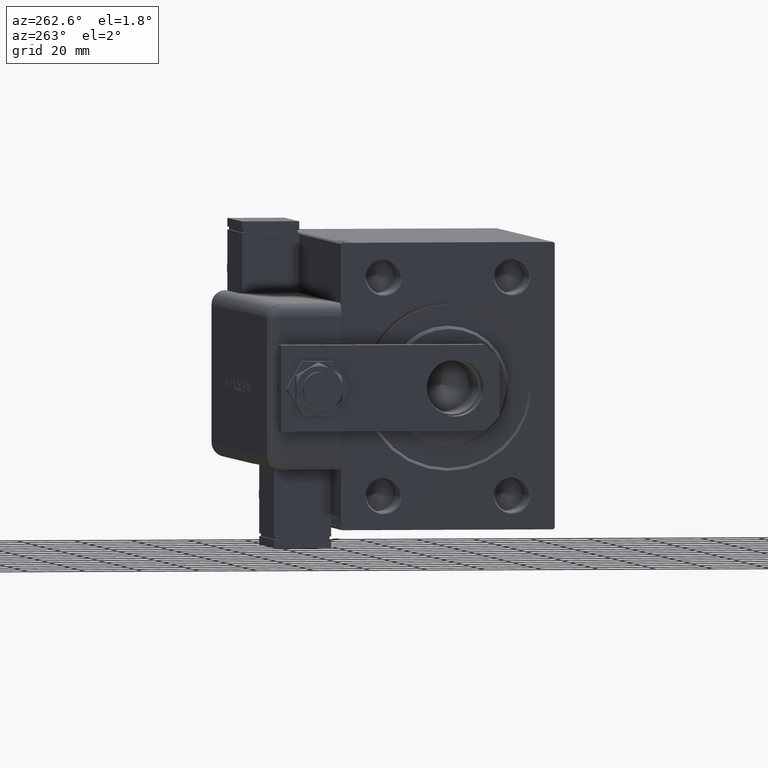
[diagram: clean part render]
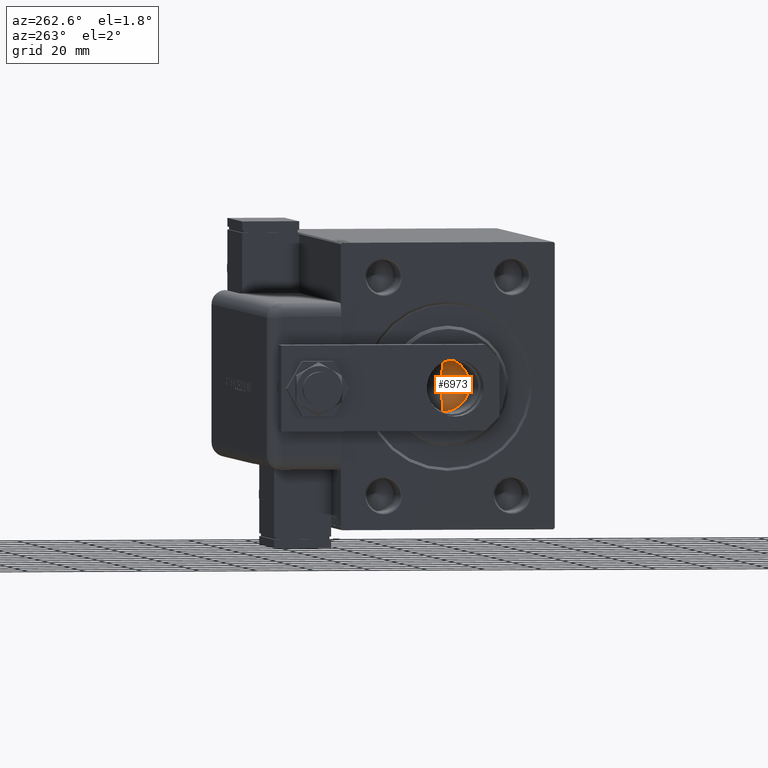
[diagram: same view with one face highlighted and labeled with its STEP entity id]
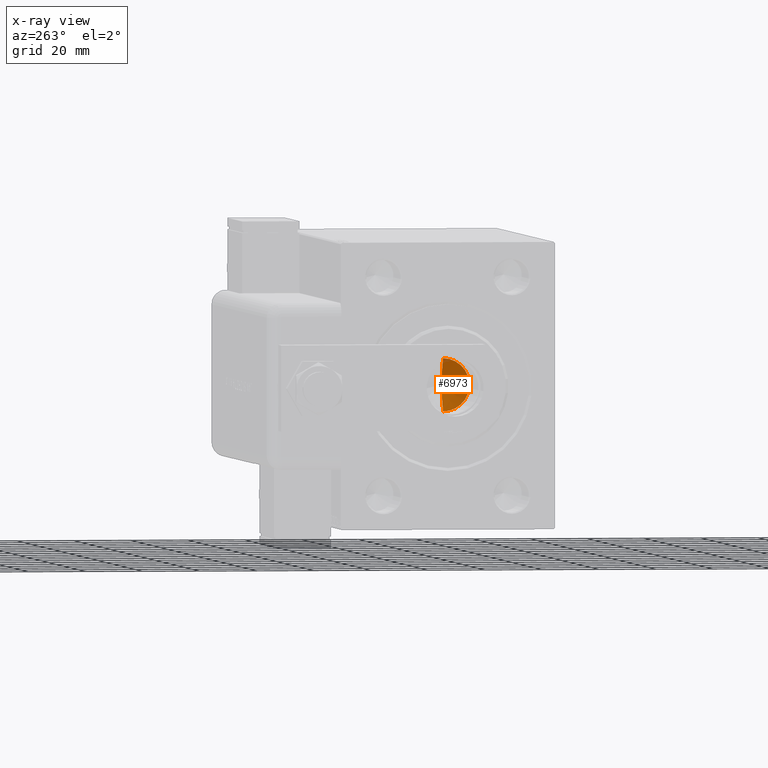
[diagram: x-ray of the same camera — body ghosted, the highlighted face saturated]
A machine part, auxiliary view. The second image highlights one B-rep face of the part: STEP entity #6973.
The next image is the same camera in x-ray: the body ghosted, the highlighted face saturated — about 1% of this face is hidden behind the body in this view.
In plain terms, the highlighted conical surface has half-angle 59 deg.
Its self-contained STEP definition (entity closure, byte-faithful):
#426 = CARTESIAN_POINT ( 'NONE',  ( 9.249999999999994671, 0.000000000000000000, 126.0000000000000284 ) ) ;
#1592 = CARTESIAN_POINT ( 'NONE',  ( 0.000000000000000000, 0.000000000000000000, 126.0000000000000284 ) ) ;
#3081 = DIRECTION ( 'NONE',  ( 0.8571673007021113344, 0.000000000000000000, 0.5150380749100558209 ) ) ;
#3697 = LINE ( 'NONE', #27455, #58756 ) ;
#6293 = CARTESIAN_POINT ( 'NONE',  ( -6.793016015247754405E-15, 0.000000000000000000, 120.4420392739950785 ) ) ;
#6973 = ADVANCED_FACE ( 'NONE', ( #27059 ), #27544, .F. ) ;
#8940 = EDGE_CURVE ( 'NONE', #41506, #20809, #3697, .T. ) ;
#11647 = DIRECTION ( 'NONE',  ( -0.000000000000000000, -0.000000000000000000, 1.000000000000000000 ) ) ;
#20202 = DIRECTION ( 'NONE',  ( 1.000000000000000000, 0.000000000000000000, 0.000000000000000000 ) ) ;
#20809 = VERTEX_POINT ( 'NONE', #21022 ) ;
#21022 = CARTESIAN_POINT ( 'NONE',  ( -9.249999999999994671, 1.132798289211300909E-15, 126.0000000000000284 ) ) ;
#24742 = EDGE_CURVE ( 'NONE', #20809, #45331, #37121, .T. ) ;
#24771 = ORIENTED_EDGE ( 'NONE', *, *, #59409, .F. ) ;
#27059 = FACE_OUTER_BOUND ( 'NONE', #40202, .T. ) ;
#27455 = CARTESIAN_POINT ( 'NONE',  ( -9.249999999999994671, 1.132798289211300909E-15, 126.0000000000000284 ) ) ;
#27544 = CONICAL_SURFACE ( 'NONE', #50898, 9.249999999999994671, 1.029744258676652535 ) ;
#36004 = DIRECTION ( 'NONE',  ( -0.8571673007021113344, 1.049727191138617463E-16, 0.5150380749100558209 ) ) ;
#36422 = ORIENTED_EDGE ( 'NONE', *, *, #8940, .T. ) ;
#37121 = CIRCLE ( 'NONE', #44906, 9.249999999999994671 ) ;
#40202 = EDGE_LOOP ( 'NONE', ( #24771, #36422, #42576 ) ) ;
#41506 = VERTEX_POINT ( 'NONE', #6293 ) ;
#42576 = ORIENTED_EDGE ( 'NONE', *, *, #24742, .T. ) ;
#43703 = VECTOR ( 'NONE', #3081, 1000.000000000000000 ) ;
#44906 = AXIS2_PLACEMENT_3D ( 'NONE', #1592, #11647, #20202 ) ;
#45331 = VERTEX_POINT ( 'NONE', #426 ) ;
#46833 = DIRECTION ( 'NONE',  ( -0.000000000000000000, -0.000000000000000000, 1.000000000000000000 ) ) ;
#48504 = CARTESIAN_POINT ( 'NONE',  ( 9.249999999999994671, 0.000000000000000000, 126.0000000000000284 ) ) ;
#49393 = LINE ( 'NONE', #48504, #43703 ) ;
#50898 = AXIS2_PLACEMENT_3D ( 'NONE', #59623, #46833, #55666 ) ;
#55666 = DIRECTION ( 'NONE',  ( 1.000000000000000000, 0.000000000000000000, 0.000000000000000000 ) ) ;
#58756 = VECTOR ( 'NONE', #36004, 1000.000000000000000 ) ;
#59409 = EDGE_CURVE ( 'NONE', #41506, #45331, #49393, .T. ) ;
#59623 = CARTESIAN_POINT ( 'NONE',  ( 0.000000000000000000, 0.000000000000000000, 126.0000000000000284 ) ) ;